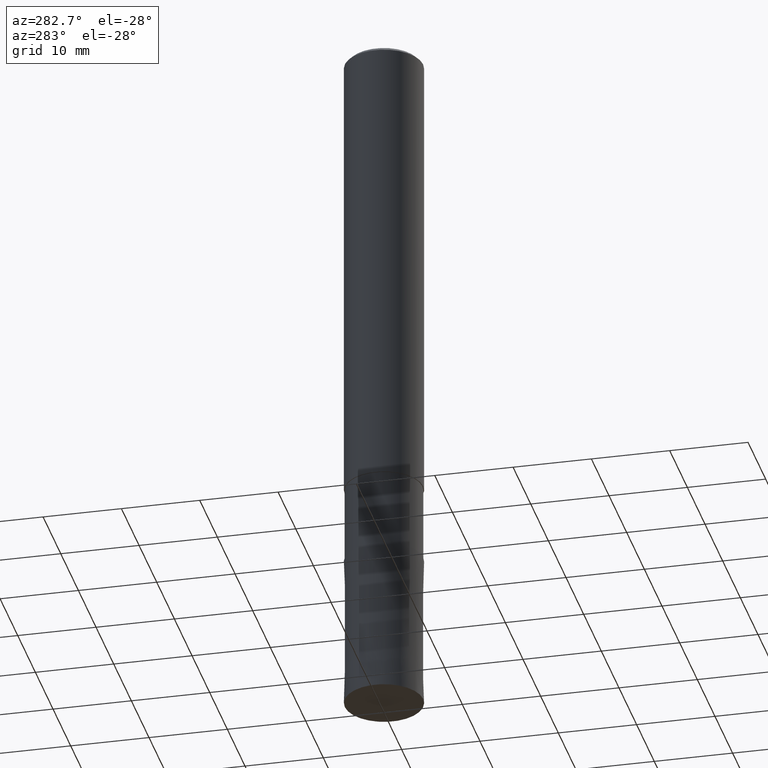
[diagram: clean part render]
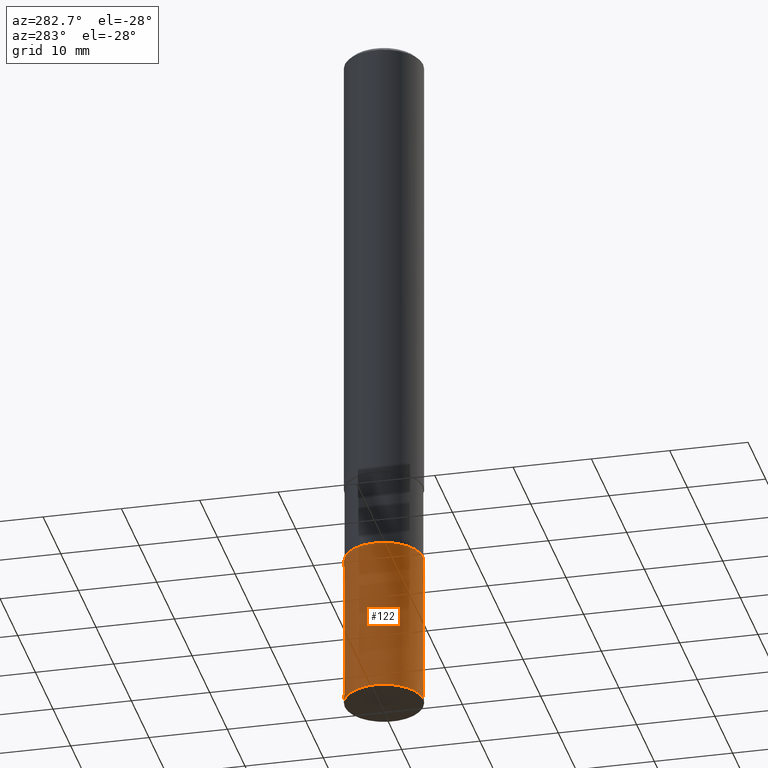
[diagram: same view with one face highlighted and labeled with its STEP entity id]
A machine part, auxiliary view. The second image highlights one B-rep face of the part: STEP entity #122.
In plain terms, the highlighted conical surface has half-angle 0 deg.
Its self-contained STEP definition (entity closure, byte-faithful):
#88=VERTEX_POINT('',#209);
#96=VERTEX_POINT('',#217);
#118=EDGE_CURVE('',#88,#128,#241,.T.);
#122=ADVANCED_FACE('',(#245),#246,.T.);
#126=EDGE_CURVE('',#96,#176,#250,.T.);
#128=VERTEX_POINT('',#252);
#142=EDGE_CURVE('',#128,#176,#270,.T.);
#152=EDGE_CURVE('',#96,#88,#282,.T.);
#176=VERTEX_POINT('',#310);
#209=CARTESIAN_POINT('',(6.1229093084765E-016,-4.9999,-70.0));
#217=CARTESIAN_POINT('',(6.12303176911189E-016,-5.0,-90.0));
#241=CIRCLE('',#376,4.9999);
#245=FACE_OUTER_BOUND('',#380,.T.);
#246=CONICAL_SURFACE('',#381,4.99995,4.99999999994668E-006);
#250=CIRCLE('',#387,5.0);
#252=CARTESIAN_POINT('',(0.0,4.9999,-70.0));
#270=LINE('',#410,#411);
#282=LINE('',#424,#425);
#310=CARTESIAN_POINT('',(0.0,5.0,-90.0));
#376=AXIS2_PLACEMENT_3D('',#506,#507,#508);
#380=EDGE_LOOP('',(#510,#511,#512,#513));
#381=AXIS2_PLACEMENT_3D('',#514,#515,#516);
#387=AXIS2_PLACEMENT_3D('',#520,#521,#522);
#410=CARTESIAN_POINT('',(-6.12297053879419E-016,4.99995,-80.0));
#411=VECTOR('',#552,1.0);
#424=CARTESIAN_POINT('',(6.12297053879419E-016,-4.99995,-80.0));
#425=VECTOR('',#565,1.0);
#506=CARTESIAN_POINT('',(0.0,0.0,-70.0));
#507=DIRECTION('',(0.0,0.0,-1.0));
#508=DIRECTION('',(0.0,1.0,0.0));
#510=ORIENTED_EDGE('',*,*,#142,.T.);
#511=ORIENTED_EDGE('',*,*,#126,.F.);
#512=ORIENTED_EDGE('',*,*,#152,.T.);
#513=ORIENTED_EDGE('',*,*,#118,.T.);
#514=CARTESIAN_POINT('',(0.0,0.0,-80.0));
#515=DIRECTION('',(0.0,-0.0,-1.0));
#516=DIRECTION('',(0.0,1.0,0.0));
#520=CARTESIAN_POINT('',(0.0,0.0,-90.0));
#521=DIRECTION('',(0.0,0.0,-1.0));
#522=DIRECTION('',(0.0,1.0,0.0));
#552=DIRECTION('',(-6.12303176902108E-022,4.99999999992585E-006,-0.9999999999875));
#565=DIRECTION('',(-6.12303176902108E-022,4.99999999992585E-006,0.9999999999875));